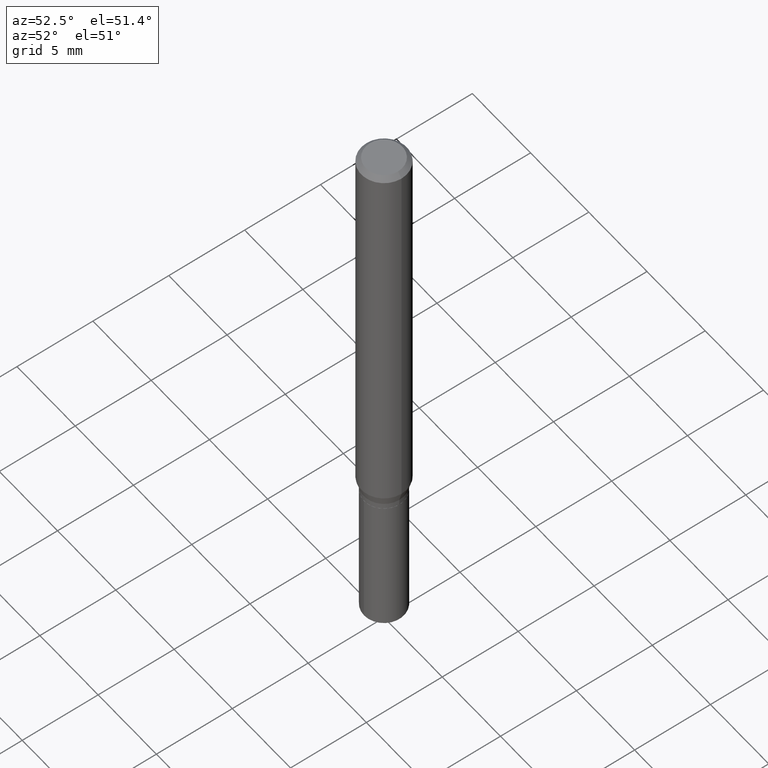
[diagram: clean part render]
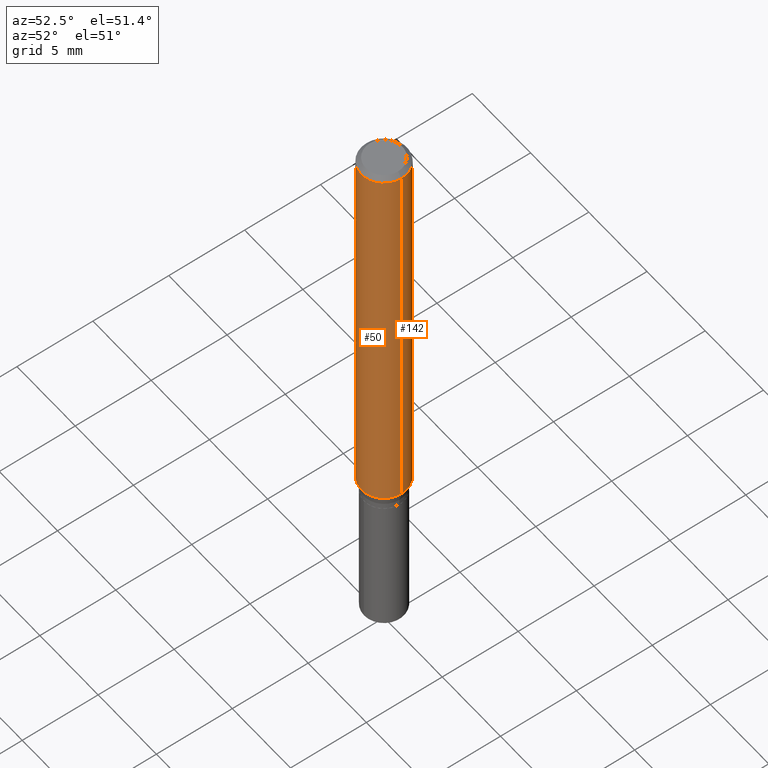
[diagram: same view with one multi-face feature highlighted, each face labeled with its STEP entity id]
A machine part, auxiliary view. The highlighted faces form ONE feature: a constant-radius fillet chain: 2 tangent blend faces with common blend radius 1.4999 mm. The faces share edges in the B-rep.
Their STEP definitions:
[1] entity #50 (Cylinder):
#12 = VERTEX_POINT ( 'NONE', #270 ) ;
#14 = DIRECTION ( 'NONE',  ( -2.445468806185136597E-29, 3.491481338843145583E-15, 1.000000000000000000 ) ) ;
#30 = AXIS2_PLACEMENT_3D ( 'NONE', #117, #39, #196 ) ;
#39 = DIRECTION ( 'NONE',  ( -2.445468806185136597E-29, 3.491481338843145583E-15, 1.000000000000000000 ) ) ;
#45 = EDGE_CURVE ( 'NONE', #58, #371, #136, .T. ) ;
#50 = ADVANCED_FACE ( 'NONE', ( #376 ), #193, .T. ) ;
#58 = VERTEX_POINT ( 'NONE', #155 ) ;
#67 = CARTESIAN_POINT ( 'NONE',  ( -0.05905000000000006771, 4.195754854663396409E-16, -2.904631170795525045E-30 ) ) ;
#70 = DIRECTION ( 'NONE',  ( -2.445468806185136877E-29, 3.491481338843145188E-15, 1.000000000000000000 ) ) ;
#117 = CARTESIAN_POINT ( 'NONE',  ( 2.888098660104664204E-31, -4.123439461173780263E-17, -0.01181000000000007218 ) ) ;
#120 = VECTOR ( 'NONE', #70, 39.37007874015748143 ) ;
#136 = CIRCLE ( 'NONE', #30, 0.05904999999999999832 ) ;
#155 = CARTESIAN_POINT ( 'NONE',  ( -0.05904999999999999832, -1.437134986157024295E-15, -0.01181000000000007218 ) ) ;
#184 = AXIS2_PLACEMENT_3D ( 'NONE', #305, #419, #301 ) ;
#187 = VERTEX_POINT ( 'NONE', #309 ) ;
#192 = EDGE_CURVE ( 'NONE', #12, #187, #203, .T. ) ;
#193 = CYLINDRICAL_SURFACE ( 'NONE', #184, 0.05905000000000006771 ) ;
#195 = VECTOR ( 'NONE', #471, 39.37007874015748143 ) ;
#196 = DIRECTION ( 'NONE',  ( 1.000000000000000000, -6.982962677686266711E-15, 0.000000000000000000 ) ) ;
#199 = DIRECTION ( 'NONE',  ( 1.000000000000000000, -6.982962677686265133E-15, 0.000000000000000000 ) ) ;
#203 = CIRCLE ( 'NONE', #252, 0.05905000000000013016 ) ;
#207 = LINE ( 'NONE', #67, #195 ) ;
#214 = ORIENTED_EDGE ( 'NONE', *, *, #192, .T. ) ;
#222 = EDGE_LOOP ( 'NONE', ( #389, #214, #280, #291 ) ) ;
#252 = AXIS2_PLACEMENT_3D ( 'NONE', #362, #14, #199 ) ;
#270 = CARTESIAN_POINT ( 'NONE',  ( -0.05905000000000013016, -3.252611063168651144E-15, -1.051756029104746748 ) ) ;
#280 = ORIENTED_EDGE ( 'NONE', *, *, #360, .T. ) ;
#291 = ORIENTED_EDGE ( 'NONE', *, *, #45, .F. ) ;
#301 = DIRECTION ( 'NONE',  ( 1.000000000000000000, -6.982962677686266711E-15, 4.876176775795936353E-29 ) ) ;
#305 = CARTESIAN_POINT ( 'NONE',  ( 0.000000000000000000, 0.000000000000000000, 0.000000000000000000 ) ) ;
#309 = CARTESIAN_POINT ( 'NONE',  ( 0.05905000000000013016, -4.084530494752366346E-15, -1.051756029104746748 ) ) ;
#327 = EDGE_CURVE ( 'NONE', #12, #58, #207, .T. ) ;
#332 = CARTESIAN_POINT ( 'NONE',  ( 0.05905000000000006771, -4.123439461173745257E-16, 2.879382386107503723E-30 ) ) ;
#360 = EDGE_CURVE ( 'NONE', #187, #371, #370, .T. ) ;
#362 = CARTESIAN_POINT ( 'NONE',  ( 2.572036560892804425E-29, -3.672186548634991426E-15, -1.051756029104746748 ) ) ;
#370 = LINE ( 'NONE', #332, #120 ) ;
#371 = VERTEX_POINT ( 'NONE', #473 ) ;
#376 = FACE_OUTER_BOUND ( 'NONE', #222, .T. ) ;
#389 = ORIENTED_EDGE ( 'NONE', *, *, #327, .F. ) ;
#419 = DIRECTION ( 'NONE',  ( -2.445468806185136597E-29, 3.491481338843145583E-15, 1.000000000000000000 ) ) ;
#471 = DIRECTION ( 'NONE',  ( -2.445468806185136877E-29, 3.491481338843145188E-15, 1.000000000000000000 ) ) ;
#473 = CARTESIAN_POINT ( 'NONE',  ( 0.05904999999999999832, -4.535783407291118600E-16, -0.01181000000000007218 ) ) ;
[2] entity #142 (Cylinder):
#12 = VERTEX_POINT ( 'NONE', #270 ) ;
#58 = VERTEX_POINT ( 'NONE', #155 ) ;
#66 = ORIENTED_EDGE ( 'NONE', *, *, #360, .F. ) ;
#67 = CARTESIAN_POINT ( 'NONE',  ( -0.05905000000000006771, 4.195754854663396409E-16, -2.904631170795525045E-30 ) ) ;
#70 = DIRECTION ( 'NONE',  ( -2.445468806185136877E-29, 3.491481338843145188E-15, 1.000000000000000000 ) ) ;
#78 = CARTESIAN_POINT ( 'NONE',  ( 2.888098660104664204E-31, -4.123439461173780263E-17, -0.01181000000000007218 ) ) ;
#81 = DIRECTION ( 'NONE',  ( 1.000000000000000000, -6.982962677686266711E-15, 0.000000000000000000 ) ) ;
#88 = EDGE_CURVE ( 'NONE', #371, #58, #197, .T. ) ;
#97 = DIRECTION ( 'NONE',  ( -2.445468806185136597E-29, 3.491481338843145583E-15, 1.000000000000000000 ) ) ;
#104 = AXIS2_PLACEMENT_3D ( 'NONE', #198, #378, #347 ) ;
#113 = ORIENTED_EDGE ( 'NONE', *, *, #227, .T. ) ;
#119 = DIRECTION ( 'NONE',  ( -2.445468806185136597E-29, 3.491481338843145583E-15, 1.000000000000000000 ) ) ;
#120 = VECTOR ( 'NONE', #70, 39.37007874015748143 ) ;
#142 = ADVANCED_FACE ( 'NONE', ( #223 ), #384, .T. ) ;
#154 = EDGE_LOOP ( 'NONE', ( #113, #442, #411, #66 ) ) ;
#155 = CARTESIAN_POINT ( 'NONE',  ( -0.05904999999999999832, -1.437134986157024295E-15, -0.01181000000000007218 ) ) ;
#173 = DIRECTION ( 'NONE',  ( 1.000000000000000000, -6.982962677686265133E-15, 0.000000000000000000 ) ) ;
#187 = VERTEX_POINT ( 'NONE', #309 ) ;
#195 = VECTOR ( 'NONE', #471, 39.37007874015748143 ) ;
#197 = CIRCLE ( 'NONE', #466, 0.05904999999999999832 ) ;
#198 = CARTESIAN_POINT ( 'NONE',  ( 0.000000000000000000, 0.000000000000000000, 0.000000000000000000 ) ) ;
#207 = LINE ( 'NONE', #67, #195 ) ;
#223 = FACE_OUTER_BOUND ( 'NONE', #154, .T. ) ;
#225 = CIRCLE ( 'NONE', #319, 0.05905000000000013016 ) ;
#227 = EDGE_CURVE ( 'NONE', #187, #12, #225, .T. ) ;
#270 = CARTESIAN_POINT ( 'NONE',  ( -0.05905000000000013016, -3.252611063168651144E-15, -1.051756029104746748 ) ) ;
#309 = CARTESIAN_POINT ( 'NONE',  ( 0.05905000000000013016, -4.084530494752366346E-15, -1.051756029104746748 ) ) ;
#319 = AXIS2_PLACEMENT_3D ( 'NONE', #422, #97, #173 ) ;
#327 = EDGE_CURVE ( 'NONE', #12, #58, #207, .T. ) ;
#332 = CARTESIAN_POINT ( 'NONE',  ( 0.05905000000000006771, -4.123439461173745257E-16, 2.879382386107503723E-30 ) ) ;
#347 = DIRECTION ( 'NONE',  ( 1.000000000000000000, -6.982962677686266711E-15, 4.876176775795936353E-29 ) ) ;
#360 = EDGE_CURVE ( 'NONE', #187, #371, #370, .T. ) ;
#370 = LINE ( 'NONE', #332, #120 ) ;
#371 = VERTEX_POINT ( 'NONE', #473 ) ;
#378 = DIRECTION ( 'NONE',  ( -2.445468806185136597E-29, 3.491481338843145583E-15, 1.000000000000000000 ) ) ;
#384 = CYLINDRICAL_SURFACE ( 'NONE', #104, 0.05905000000000006771 ) ;
#411 = ORIENTED_EDGE ( 'NONE', *, *, #88, .F. ) ;
#422 = CARTESIAN_POINT ( 'NONE',  ( 2.572036560892804425E-29, -3.672186548634991426E-15, -1.051756029104746748 ) ) ;
#442 = ORIENTED_EDGE ( 'NONE', *, *, #327, .T. ) ;
#466 = AXIS2_PLACEMENT_3D ( 'NONE', #78, #119, #81 ) ;
#471 = DIRECTION ( 'NONE',  ( -2.445468806185136877E-29, 3.491481338843145188E-15, 1.000000000000000000 ) ) ;
#473 = CARTESIAN_POINT ( 'NONE',  ( 0.05904999999999999832, -4.535783407291118600E-16, -0.01181000000000007218 ) ) ;